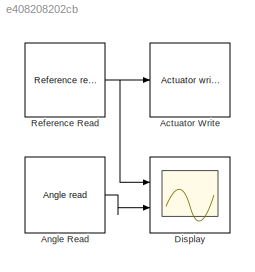
MODEL slx_e408208202cb
KIND model
CONFIG AbsTol = auto
CONFIG EnableMultiTasking = off
CONFIG FixedStep = auto
CONFIG MaxStep = auto
CONFIG MinStep = auto
CONFIG RelTol = 1e-3
CONFIG SampleTimeConstraint = Unconstrained
CONFIG SolverName = VariableStepAuto
CONFIG StartTime = 0.0
CONFIG StopTime = 10.0
BLOCK [Reference] Actuator Write   REF=AeroLibrary/AeroShield/Actuator write 
  Ports = [1]
  SourceBlock = AeroLibrary/AeroShield/Actuator write
  SourceProductName = AeroShield Library
BLOCK [Reference] Angle Read   REF=AeroLibrary/Angle read 
  Ports = [0, 1]
  SourceBlock = AeroLibrary/Angle read
  SourceProductName = AeroShield Library
BLOCK [Scope] Display
  Floating = off
  NumInputPorts = 2
  Ports = [2]
  ScopeSpecificationString = Simulink.scopes.TimeScopeBlockCfg('CurrentConfiguration', extmgr.ConfigurationSet(extmgr.Configuration('Core','General UI',true,'FigureColor',[1 1 1]),extmgr.Configuration('Core','Source UI',true),extmgr.Configuration('Sources','WiredSimulink',true),extmgr.Configuration('Visuals','Time Domain',true,'SerializedDisplays',{struct('MinYLimReal','0','MaxYLimReal','100','YLabelReal','Referencne trajecto...<+3934ch>
BLOCK [Reference] Reference Read  REF=AeroLibrary/Reference read
  Ports = [0, 1]
  SourceBlock = AeroLibrary/Reference read
  SourceProductName = AeroShield Library
LINE Angle Read :1 -> Display:2
NET Reference Read:1 -> Actuator Write :1, Display:1
note: NET lines group one-source signal fan-out (src -> all destinations, sorted); 1:1 wires keep LINE
